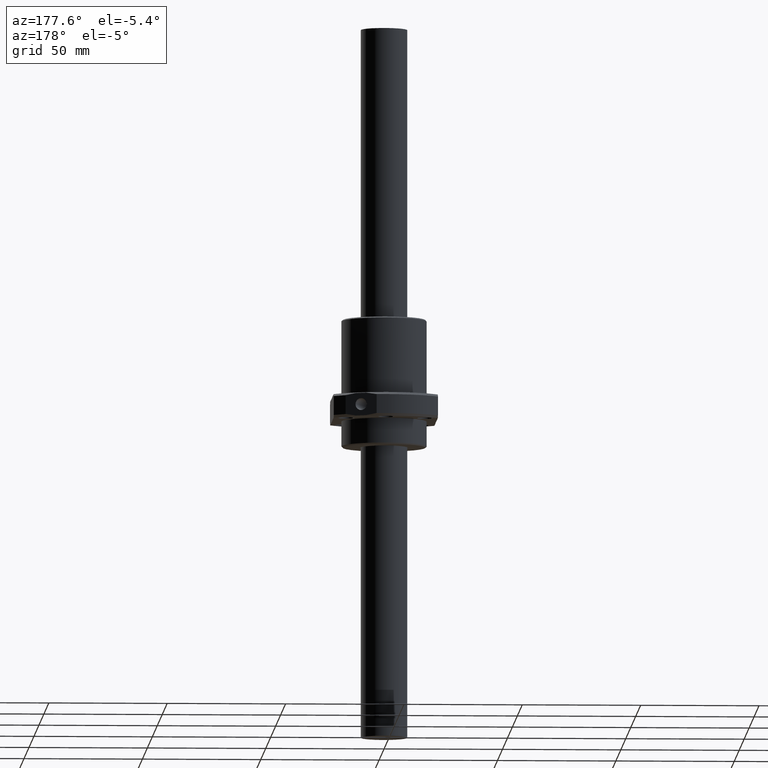
[diagram: clean part render]
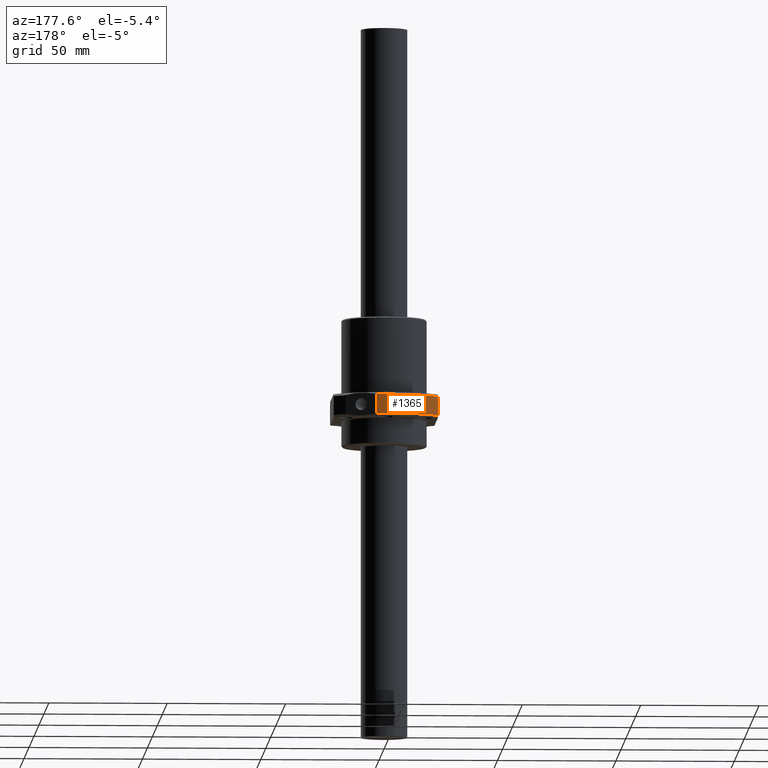
[diagram: same view with one face highlighted and labeled with its STEP entity id]
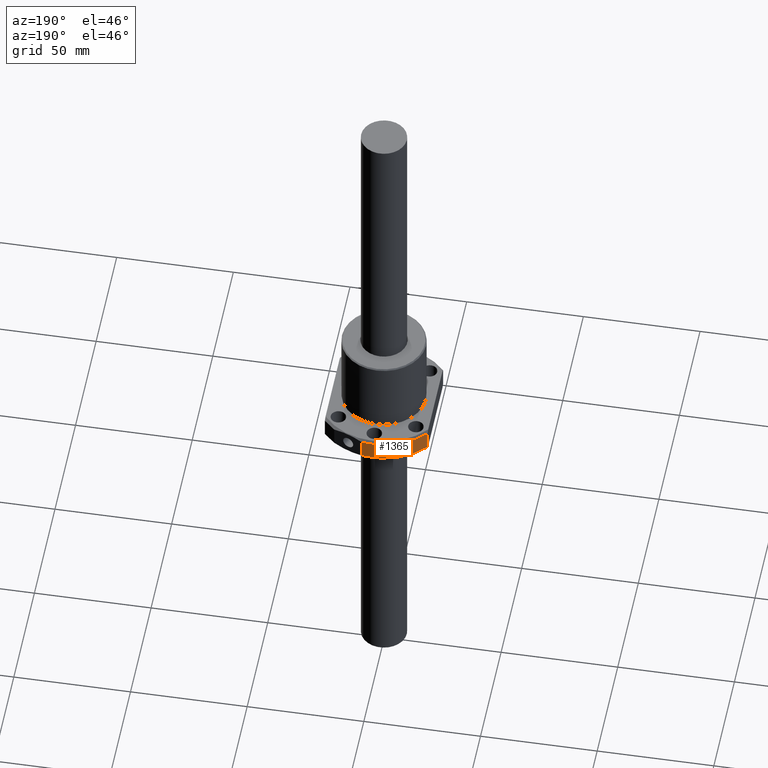
[diagram: same view with one face highlighted and labeled with its STEP entity id]
A machine part, auxiliary view. The second image highlights one B-rep face of the part: STEP entity #1365.
A second angle (auxiliary view) of the same face is appended — the face is thin or edge-on in the first view.
In plain terms, the highlighted cylindrical surface (partial cylindrical patch) has radius 29 mm, axis along (0, 0, -1).
Its self-contained STEP definition (entity closure, byte-faithful):
#13 = CARTESIAN_POINT ( 'NONE',  ( 13.95785251161127300, 25.41801474902634100, -11.99180111404685100 ) ) ;
#35 = EDGE_LOOP ( 'NONE', ( #1783, #1006, #1130, #384 ) ) ;
#53 = CYLINDRICAL_SURFACE ( 'NONE', #110, 29.00000000000000000 ) ;
#110 = AXIS2_PLACEMENT_3D ( 'NONE', #1730, #1563, #1372 ) ;
#115 = CARTESIAN_POINT ( 'NONE',  ( 13.95785250812109800, 25.41801475094243300, -20.00819888595376400 ) ) ;
#153 = FACE_OUTER_BOUND ( 'NONE', #35, .T. ) ;
#158 = VERTEX_POINT ( 'NONE', #409 ) ;
#171 = CARTESIAN_POINT ( 'NONE',  ( -4.332425422291924700, 28.66520349175587900, -11.99075372016903700 ) ) ;
#221 = CARTESIAN_POINT ( 'NONE',  ( 14.49155811900881500, 25.11778429614211900, -11.99189795274449800 ) ) ;
#234 = VECTOR ( 'NONE', #1045, 1000.000000000000000 ) ;
#272 = VECTOR ( 'NONE', #690, 1000.000000000000000 ) ;
#274 = CARTESIAN_POINT ( 'NONE',  ( -4.332425426456354400, 28.66520349076351300, -20.00924628018984600 ) ) ;
#312 = CARTESIAN_POINT ( 'NONE',  ( 14.49155811556739700, 25.11778429812708400, -20.00810204725614100 ) ) ;
#372 = CARTESIAN_POINT ( 'NONE',  ( -1.892442666396393400, 29.03385937512473100, -11.99063480617114800 ) ) ;
#384 = ORIENTED_EDGE ( 'NONE', *, *, #627, .F. ) ;
#409 = CARTESIAN_POINT ( 'NONE',  ( -4.332425426456354400, 28.66520349076351300, -20.00924628018984600 ) ) ;
#420 = CARTESIAN_POINT ( 'NONE',  ( -4.332425422291924700, 28.66520349175587900, -11.99075372016903700 ) ) ;
#426 = CARTESIAN_POINT ( 'NONE',  ( 15.54375000611341700, 24.48085155083244400, -11.99210339290102400 ) ) ;
#462 = CARTESIAN_POINT ( 'NONE',  ( -1.892442672003334900, 29.03385937476345200, -20.00936519382873500 ) ) ;
#508 = CARTESIAN_POINT ( 'NONE',  ( 15.54375000277261500, 24.48085155295303000, -20.00789660709966000 ) ) ;
#558 = VERTEX_POINT ( 'NONE', #1519 ) ;
#569 = CARTESIAN_POINT ( 'NONE',  ( 0.5354472233146984100, 29.08726717838420200, -11.99061757874296000 ) ) ;
#606 = CARTESIAN_POINT ( 'NONE',  ( 16.06187667310872400, 24.14416749771164900, -11.99221198847081600 ) ) ;
#616 = EDGE_CURVE ( 'NONE', #878, #158, #1769, .T. ) ;
#627 = EDGE_CURVE ( 'NONE', #558, #1503, #779, .T. ) ;
#655 = CARTESIAN_POINT ( 'NONE',  ( 0.5354472190934127500, 29.08726717846385400, -20.00938242125707200 ) ) ;
#690 = DIRECTION ( 'NONE',  ( -0.0000000000000000000, -0.0000000000000000000, -1.000000000000000000 ) ) ;
#706 = CARTESIAN_POINT ( 'NONE',  ( 16.06187666982748000, 24.14416749989403100, -20.00778801152988600 ) ) ;
#754 = CARTESIAN_POINT ( 'NONE',  ( 4.159983068957401100, 28.71641275259102600, -11.99073720175978300 ) ) ;
#777 = CARTESIAN_POINT ( 'NONE',  ( 21.99999999191315300, 18.88509238110721700, -20.00609177970081400 ) ) ;
#779 = B_SPLINE_CURVE_WITH_KNOTS ( 'NONE', 3,
 ( #1197, #1007, #806, #606, #426, #221, #13, #1708, #1533, #1345, #1157, #958, #754, #569, #372, #171 ),
 .UNSPECIFIED., .F., .F.,
 ( 4, 2, 2, 2, 2, 2, 2, 4 ),
 ( 0.0000000000000000000, 0.007321447636075543800, 0.009151809545094433500, 0.01098217145411332200, 0.01464289527215109500, 0.01830361909018886700, 0.02196434290822663800, 0.02928579054430218200 ),
 .UNSPECIFIED. ) ;
#806 = CARTESIAN_POINT ( 'NONE',  ( 18.57956260033647000, 22.39202059371151800, -11.99277713025366100 ) ) ;
#860 = CARTESIAN_POINT ( 'NONE',  ( 4.159983064824840100, 28.71641275318998500, -20.00926279824040300 ) ) ;
#878 = VERTEX_POINT ( 'NONE', #777 ) ;
#885 = CARTESIAN_POINT ( 'NONE',  ( -4.332425425000000300, 28.66520349100000000, -16.00015012100000800 ) ) ;
#897 = CARTESIAN_POINT ( 'NONE',  ( 18.57956259735338000, 22.39202059619219300, -20.00722286974713500 ) ) ;
#958 = CARTESIAN_POINT ( 'NONE',  ( 5.366011166282509000, 28.51655535831682500, -11.99080166782805700 ) ) ;
#1006 = ORIENTED_EDGE ( 'NONE', *, *, #616, .T. ) ;
#1007 = CARTESIAN_POINT ( 'NONE',  ( 20.39222907358017900, 20.75712210988164900, -11.99330444421884300 ) ) ;
#1045 = DIRECTION ( 'NONE',  ( 0.0000000000000000000, 0.0000000000000000000, 1.000000000000000000 ) ) ;
#1047 = CARTESIAN_POINT ( 'NONE',  ( 5.366011162169937300, 28.51655535909192500, -20.00919833217219700 ) ) ;
#1074 = EDGE_CURVE ( 'NONE', #878, #558, #1438, .T. ) ;
#1077 = LINE ( 'NONE', #885, #272 ) ;
#1094 = CARTESIAN_POINT ( 'NONE',  ( 20.39222907166080400, 20.75712211188632100, -20.00669555581540500 ) ) ;
#1130 = ORIENTED_EDGE ( 'NONE', *, *, #1786, .F. ) ;
#1157 = CARTESIAN_POINT ( 'NONE',  ( 7.768840380655579000, 27.95788927904899500, -11.99098187027119900 ) ) ;
#1197 = CARTESIAN_POINT ( 'NONE',  ( 21.99999999719067700, 18.88509237748015600, -11.99390822194118700 ) ) ;
#1242 = CARTESIAN_POINT ( 'NONE',  ( 21.99999999121487800, 18.88509238192026300, -16.00001759100000200 ) ) ;
#1246 = CARTESIAN_POINT ( 'NONE',  ( 7.768840376689603000, 27.95788928015219500, -20.00901812972915600 ) ) ;
#1300 = CARTESIAN_POINT ( 'NONE',  ( 21.99999999191315300, 18.88509238110721700, -20.00609177970081400 ) ) ;
#1345 = CARTESIAN_POINT ( 'NONE',  ( 8.939651977057444300, 27.60521869642348800, -11.99109562673872600 ) ) ;
#1365 = ADVANCED_FACE ( 'NONE', ( #153 ), #53, .T. ) ;
#1372 = DIRECTION ( 'NONE',  ( 1.000000000000000000, 0.0000000000000000000, 0.0000000000000000000 ) ) ;
#1438 = LINE ( 'NONE', #1242, #234 ) ;
#1440 = CARTESIAN_POINT ( 'NONE',  ( 8.939651973169672400, 27.60521869768322700, -20.00890437326167500 ) ) ;
#1503 = VERTEX_POINT ( 'NONE', #420 ) ;
#1519 = CARTESIAN_POINT ( 'NONE',  ( 21.99999999719067700, 18.88509237748015600, -11.99390822194118700 ) ) ;
#1533 = CARTESIAN_POINT ( 'NONE',  ( 11.22244181292327300, 26.75888833654229500, -11.99136861451044000 ) ) ;
#1563 = DIRECTION ( 'NONE',  ( 0.0000000000000000000, -0.0000000000000000000, 1.000000000000000000 ) ) ;
#1611 = CARTESIAN_POINT ( 'NONE',  ( 11.22244180920246300, 26.75888833810340400, -20.00863138549005900 ) ) ;
#1708 = CARTESIAN_POINT ( 'NONE',  ( 12.33441269679451900, 26.26521093222692100, -11.99152785150442400 ) ) ;
#1730 = CARTESIAN_POINT ( 'NONE',  ( 0.0000000000000000000, -0.009351256000000002200, -20.05753351199999900 ) ) ;
#1769 = B_SPLINE_CURVE_WITH_KNOTS ( 'NONE', 3,
 ( #1300, #1094, #897, #706, #508, #312, #115, #1785, #1611, #1440, #1246, #1047, #860, #655, #462, #274 ),
 .UNSPECIFIED., .F., .F.,
 ( 4, 2, 2, 2, 2, 2, 2, 4 ),
 ( 1.059930901536250700E-012, 0.007321447637287914300, 0.009151809546344908900, 0.01098217145540190300, 0.01464289527351589000, 0.01830361909162987400, 0.02196434290974385800, 0.02928579054597183300 ),
 .UNSPECIFIED. ) ;
#1783 = ORIENTED_EDGE ( 'NONE', *, *, #1074, .F. ) ;
#1785 = CARTESIAN_POINT ( 'NONE',  ( 12.33441269316246500, 26.26521093393284900, -20.00847214849612900 ) ) ;
#1786 = EDGE_CURVE ( 'NONE', #1503, #158, #1077, .T. ) ;